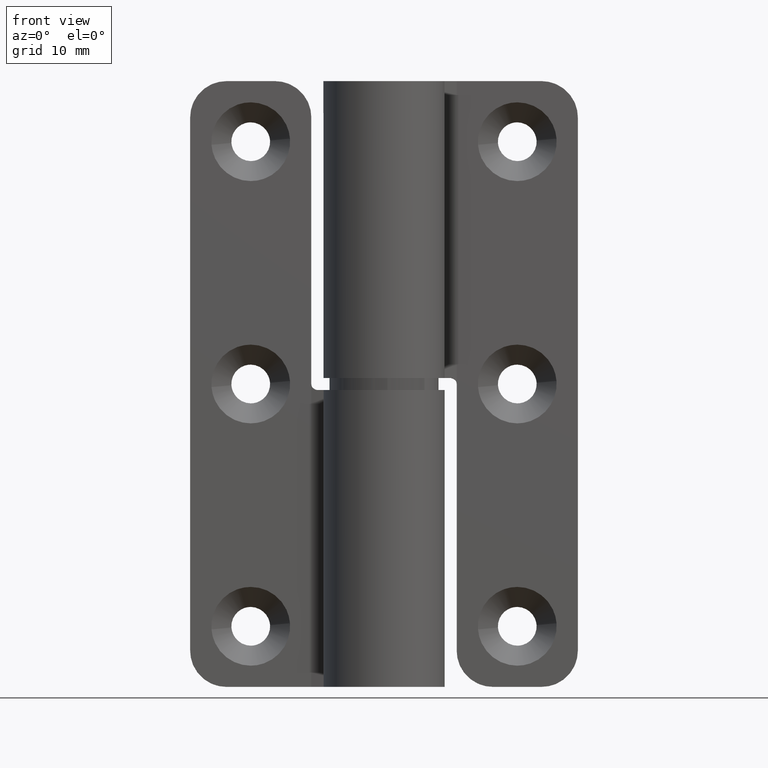
[diagram: clean part render]
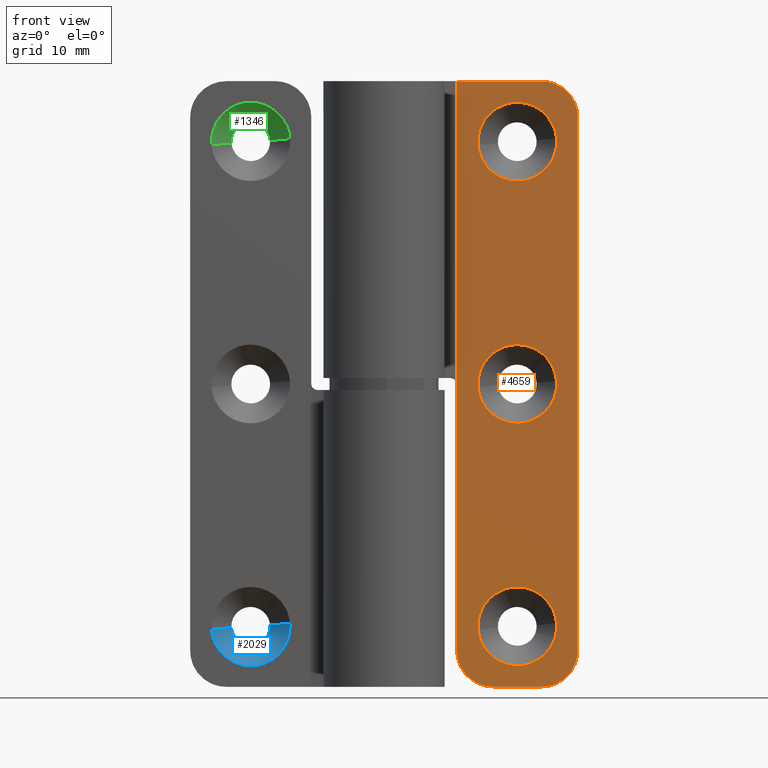
[diagram: same view with three faces highlighted in distinct colors, each labeled with its STEP entity id]
A machine part, front view with three faces highlighted in distinct colors.
Their STEP definitions:

[orange] entity #4659 — the highlighted face is a freeform B-spline surface patch.
#3141=CARTESIAN_POINT('',(14.239981334640120,3.999999999981175,45.254992061261852));
#3142=VERTEX_POINT('',#3141);
#3148=CARTESIAN_POINT('',(10.999999999999860,4.000000000000100,48.250000000000128));
#3149=VERTEX_POINT('',#3148);
#3150=CARTESIAN_POINT('',(10.999999999999860,4.000000000000100,48.250000000000128));
#3151=CARTESIAN_POINT('',(14.004269097763853,3.999999999990636,48.250000000000874));
#3152=CARTESIAN_POINT('',(14.239981334640120,3.999999999981174,45.254992061261852));
#3160=(BOUNDED_CURVE()B_SPLINE_CURVE(2,(#3150,#3151,#3152),.UNSPECIFIED.,.F.,.U.)B_SPLINE_CURVE_WITH_KNOTS((3,3),(0.0,0.236331300625103),.UNSPECIFIED.)CURVE()GEOMETRIC_REPRESENTATION_ITEM()RATIONAL_B_SPLINE_CURVE((1.0,0.723120658614176,0.969723356155821))REPRESENTATION_ITEM(''));
#3161=EDGE_CURVE('',#3149,#3142,#3160,.T.);
#3163=CARTESIAN_POINT('',(7.760018665359605,3.999999999981175,44.745007938738141));
#3164=VERTEX_POINT('',#3163);
#3165=CARTESIAN_POINT('',(7.760018665359605,3.999999999981175,44.745007938738141));
#3166=CARTESIAN_POINT('',(7.749999999981212,3.999999999981518,44.872307152150832));
#3167=CARTESIAN_POINT('',(7.749999999981583,3.999999999981891,44.999999999998572));
#3168=CARTESIAN_POINT('',(7.749999999991016,3.999999999991353,48.249999999999453));
#3169=CARTESIAN_POINT('',(10.999999999999860,4.000000000000100,48.250000000000128));
#3177=(BOUNDED_CURVE()B_SPLINE_CURVE(2,(#3165,#3166,#3167,#3168,#3169),.UNSPECIFIED.,.F.,.U.)B_SPLINE_CURVE_WITH_KNOTS((3,2,3),(0.736331300625102,0.750000000000000,1.0),.UNSPECIFIED.)CURVE()GEOMETRIC_REPRESENTATION_ITEM()RATIONAL_B_SPLINE_CURVE((0.969723356155820,0.983986122572371,1.0,0.707106781186548,1.0))REPRESENTATION_ITEM(''));
#3178=EDGE_CURVE('',#3164,#3149,#3177,.T.);
#3214=CARTESIAN_POINT('',(10.999999999999860,4.000000000000100,41.749999999999872));
#3215=VERTEX_POINT('',#3214);
#3216=CARTESIAN_POINT('',(10.999999999999860,4.000000000000100,41.749999999999872));
#3217=CARTESIAN_POINT('',(7.995730902235884,3.999999999990636,41.749999999999133));
#3218=CARTESIAN_POINT('',(7.760018665359605,3.999999999981176,44.745007938738141));
#3226=(BOUNDED_CURVE()B_SPLINE_CURVE(2,(#3216,#3217,#3218),.UNSPECIFIED.,.F.,.U.)B_SPLINE_CURVE_WITH_KNOTS((3,3),(0.500000000000000,0.736331300625102),.UNSPECIFIED.)CURVE()GEOMETRIC_REPRESENTATION_ITEM()RATIONAL_B_SPLINE_CURVE((1.0,0.723120658614177,0.969723356155819))REPRESENTATION_ITEM(''));
#3227=EDGE_CURVE('',#3215,#3164,#3226,.T.);
#3229=CARTESIAN_POINT('',(14.239981334640120,3.999999999981174,45.254992061261852));
#3230=CARTESIAN_POINT('',(14.250000000018511,3.999999999981519,45.127692847849147));
#3231=CARTESIAN_POINT('',(14.250000000018140,3.999999999981890,45.000000000001428));
#3232=CARTESIAN_POINT('',(14.250000000008708,3.999999999991353,41.750000000000568));
#3233=CARTESIAN_POINT('',(10.999999999999860,4.000000000000100,41.749999999999872));
#3241=(BOUNDED_CURVE()B_SPLINE_CURVE(2,(#3229,#3230,#3231,#3232,#3233),.UNSPECIFIED.,.F.,.U.)B_SPLINE_CURVE_WITH_KNOTS((3,2,3),(0.236331300625103,0.250000000000000,0.500000000000000),.UNSPECIFIED.)CURVE()GEOMETRIC_REPRESENTATION_ITEM()RATIONAL_B_SPLINE_CURVE((0.969723356155821,0.983986122572372,1.0,0.707106781186548,1.0))REPRESENTATION_ITEM(''));
#3242=EDGE_CURVE('',#3142,#3215,#3241,.T.);
#3453=CARTESIAN_POINT('',(14.239981334640120,3.999999999981175,25.254992061261859));
#3454=VERTEX_POINT('',#3453);
#3460=CARTESIAN_POINT('',(10.999999999999860,4.000000000000100,28.250000000000121));
#3461=VERTEX_POINT('',#3460);
#3462=CARTESIAN_POINT('',(10.999999999999860,4.000000000000100,28.250000000000121));
#3463=CARTESIAN_POINT('',(14.004269097763842,3.999999999990637,28.250000000000856));
#3464=CARTESIAN_POINT('',(14.239981334640115,3.999999999981175,25.254992061261856));
#3472=(BOUNDED_CURVE()B_SPLINE_CURVE(2,(#3462,#3463,#3464),.UNSPECIFIED.,.F.,.U.)B_SPLINE_CURVE_WITH_KNOTS((3,3),(0.0,0.236331300625102),.UNSPECIFIED.)CURVE()GEOMETRIC_REPRESENTATION_ITEM()RATIONAL_B_SPLINE_CURVE((1.0,0.723120658614177,0.969723356155820))REPRESENTATION_ITEM(''));
#3473=EDGE_CURVE('',#3461,#3454,#3472,.T.);
#3475=CARTESIAN_POINT('',(7.760018665359606,3.999999999981175,24.745007938738141));
#3476=VERTEX_POINT('',#3475);
#3477=CARTESIAN_POINT('',(7.760018665359606,3.999999999981176,24.745007938738141));
#3478=CARTESIAN_POINT('',(7.749999999981213,3.999999999981519,24.872307152150842));
#3479=CARTESIAN_POINT('',(7.749999999981583,3.999999999981891,24.999999999998579));
#3480=CARTESIAN_POINT('',(7.749999999991016,3.999999999991353,28.249999999999439));
#3481=CARTESIAN_POINT('',(10.999999999999860,4.000000000000100,28.250000000000121));
#3489=(BOUNDED_CURVE()B_SPLINE_CURVE(2,(#3477,#3478,#3479,#3480,#3481),.UNSPECIFIED.,.F.,.U.)B_SPLINE_CURVE_WITH_KNOTS((3,2,3),(0.736331300625102,0.750000000000000,1.0),.UNSPECIFIED.)CURVE()GEOMETRIC_REPRESENTATION_ITEM()RATIONAL_B_SPLINE_CURVE((0.969723356155819,0.983986122572371,1.0,0.707106781186548,1.0))REPRESENTATION_ITEM(''));
#3490=EDGE_CURVE('',#3476,#3461,#3489,.T.);
#3526=CARTESIAN_POINT('',(10.999999999999860,4.000000000000100,21.749999999999879));
#3527=VERTEX_POINT('',#3526);
#3528=CARTESIAN_POINT('',(10.999999999999860,4.000000000000100,21.749999999999879));
#3529=CARTESIAN_POINT('',(7.995730902235885,3.999999999990636,21.749999999999130));
#3530=CARTESIAN_POINT('',(7.760018665359606,3.999999999981176,24.745007938738141));
#3538=(BOUNDED_CURVE()B_SPLINE_CURVE(2,(#3528,#3529,#3530),.UNSPECIFIED.,.F.,.U.)B_SPLINE_CURVE_WITH_KNOTS((3,3),(0.500000000000000,0.736331300625102),.UNSPECIFIED.)CURVE()GEOMETRIC_REPRESENTATION_ITEM()RATIONAL_B_SPLINE_CURVE((1.0,0.723120658614177,0.969723356155819))REPRESENTATION_ITEM(''));
#3539=EDGE_CURVE('',#3527,#3476,#3538,.T.);
#3541=CARTESIAN_POINT('',(14.239981334640119,3.999999999981175,25.254992061261856));
#3542=CARTESIAN_POINT('',(14.250000000018508,3.999999999981520,25.127692847849165));
#3543=CARTESIAN_POINT('',(14.250000000018140,3.999999999981891,25.000000000001432));
#3544=CARTESIAN_POINT('',(14.250000000008708,3.999999999991353,21.750000000000565));
#3545=CARTESIAN_POINT('',(10.999999999999860,4.000000000000100,21.749999999999879));
#3553=(BOUNDED_CURVE()B_SPLINE_CURVE(2,(#3541,#3542,#3543,#3544,#3545),.UNSPECIFIED.,.F.,.U.)B_SPLINE_CURVE_WITH_KNOTS((3,2,3),(0.236331300625102,0.250000000000000,0.500000000000000),.UNSPECIFIED.)CURVE()GEOMETRIC_REPRESENTATION_ITEM()RATIONAL_B_SPLINE_CURVE((0.969723356155820,0.983986122572371,1.0,0.707106781186548,1.0))REPRESENTATION_ITEM(''));
#3554=EDGE_CURVE('',#3454,#3527,#3553,.T.);
#3765=CARTESIAN_POINT('',(14.239981334640120,3.999999999981175,5.254992061261858));
#3766=VERTEX_POINT('',#3765);
#3772=CARTESIAN_POINT('',(10.999999999999860,4.000000000000100,8.250000000000126));
#3773=VERTEX_POINT('',#3772);
#3774=CARTESIAN_POINT('',(10.999999999999860,4.000000000000100,8.250000000000126));
#3775=CARTESIAN_POINT('',(14.004269097763842,3.999999999990637,8.250000000000867));
#3776=CARTESIAN_POINT('',(14.239981334640115,3.999999999981175,5.254992061261858));
#3784=(BOUNDED_CURVE()B_SPLINE_CURVE(2,(#3774,#3775,#3776),.UNSPECIFIED.,.F.,.U.)B_SPLINE_CURVE_WITH_KNOTS((3,3),(0.0,0.236331300625102),.UNSPECIFIED.)CURVE()GEOMETRIC_REPRESENTATION_ITEM()RATIONAL_B_SPLINE_CURVE((1.0,0.723120658614177,0.969723356155820))REPRESENTATION_ITEM(''));
#3785=EDGE_CURVE('',#3773,#3766,#3784,.T.);
#3787=CARTESIAN_POINT('',(7.760018665359606,3.999999999981175,4.745007938738145));
#3788=VERTEX_POINT('',#3787);
#3789=CARTESIAN_POINT('',(7.760018665359606,3.999999999981175,4.745007938738145));
#3790=CARTESIAN_POINT('',(7.749999999981213,3.999999999981520,4.872307152150842));
#3791=CARTESIAN_POINT('',(7.749999999981584,3.999999999981891,4.999999999998569));
#3792=CARTESIAN_POINT('',(7.749999999991016,3.999999999991353,8.249999999999439));
#3793=CARTESIAN_POINT('',(10.999999999999860,4.000000000000100,8.250000000000126));
#3801=(BOUNDED_CURVE()B_SPLINE_CURVE(2,(#3789,#3790,#3791,#3792,#3793),.UNSPECIFIED.,.F.,.U.)B_SPLINE_CURVE_WITH_KNOTS((3,2,3),(0.736331300625102,0.750000000000000,1.0),.UNSPECIFIED.)CURVE()GEOMETRIC_REPRESENTATION_ITEM()RATIONAL_B_SPLINE_CURVE((0.969723356155820,0.983986122572371,1.0,0.707106781186548,1.0))REPRESENTATION_ITEM(''));
#3802=EDGE_CURVE('',#3788,#3773,#3801,.T.);
#3838=CARTESIAN_POINT('',(10.999999999999860,4.000000000000100,1.749999999999875));
#3839=VERTEX_POINT('',#3838);
#3840=CARTESIAN_POINT('',(10.999999999999860,4.000000000000100,1.749999999999875));
#3841=CARTESIAN_POINT('',(7.995730902235878,3.999999999990637,1.749999999999132));
#3842=CARTESIAN_POINT('',(7.760018665359606,3.999999999981175,4.745007938738145));
#3850=(BOUNDED_CURVE()B_SPLINE_CURVE(2,(#3840,#3841,#3842),.UNSPECIFIED.,.F.,.U.)B_SPLINE_CURVE_WITH_KNOTS((3,3),(0.500000000000000,0.736331300625102),.UNSPECIFIED.)CURVE()GEOMETRIC_REPRESENTATION_ITEM()RATIONAL_B_SPLINE_CURVE((1.0,0.723120658614176,0.969723356155820))REPRESENTATION_ITEM(''));
#3851=EDGE_CURVE('',#3839,#3788,#3850,.T.);
#3853=CARTESIAN_POINT('',(14.239981334640115,3.999999999981175,5.254992061261858));
#3854=CARTESIAN_POINT('',(14.250000000018511,3.999999999981518,5.127692847849159));
#3855=CARTESIAN_POINT('',(14.250000000018140,3.999999999981891,5.000000000001430));
#3856=CARTESIAN_POINT('',(14.250000000008708,3.999999999991353,1.750000000000561));
#3857=CARTESIAN_POINT('',(10.999999999999860,4.000000000000100,1.749999999999875));
#3865=(BOUNDED_CURVE()B_SPLINE_CURVE(2,(#3853,#3854,#3855,#3856,#3857),.UNSPECIFIED.,.F.,.U.)B_SPLINE_CURVE_WITH_KNOTS((3,2,3),(0.236331300625102,0.250000000000000,0.500000000000000),.UNSPECIFIED.)CURVE()GEOMETRIC_REPRESENTATION_ITEM()RATIONAL_B_SPLINE_CURVE((0.969723356155820,0.983986122572371,1.0,0.707106781186548,1.0))REPRESENTATION_ITEM(''));
#3866=EDGE_CURVE('',#3766,#3839,#3865,.T.);
#4011=CARTESIAN_POINT('',(6.000000000000440,4.000000000000116,25.0));
#4012=VERTEX_POINT('',#4011);
#4088=CARTESIAN_POINT('',(16.0,4.000000000000116,47.0));
#4089=VERTEX_POINT('',#4088);
#4090=CARTESIAN_POINT('',(12.999999999999799,4.000000000000116,50.0));
#4091=VERTEX_POINT('',#4090);
#4092=CARTESIAN_POINT('',(16.0,4.000000000000116,47.0));
#4093=CARTESIAN_POINT('',(15.999999999999801,4.000000000000116,50.0));
#4094=CARTESIAN_POINT('',(12.999999999999799,4.000000000000116,50.0));
#4102=(BOUNDED_CURVE()B_SPLINE_CURVE(2,(#4092,#4093,#4094),.UNSPECIFIED.,.F.,.U.)CURVE()GEOMETRIC_REPRESENTATION_ITEM()QUASI_UNIFORM_CURVE()RATIONAL_B_SPLINE_CURVE((1.0,0.707106781186548,1.0))REPRESENTATION_ITEM(''));
#4103=EDGE_CURVE('',#4089,#4091,#4102,.T.);
#4149=CARTESIAN_POINT('',(12.999999999999799,4.000000000000116,-8.326673E-014));
#4150=VERTEX_POINT('',#4149);
#4151=CARTESIAN_POINT('',(16.0,4.000000000000116,2.999999999999890));
#4152=VERTEX_POINT('',#4151);
#4153=CARTESIAN_POINT('',(12.999999999999799,4.000000000000116,-1.101549E-013));
#4154=CARTESIAN_POINT('',(15.999999999999801,4.000000000000116,-1.101549E-013));
#4155=CARTESIAN_POINT('',(15.999999999999799,4.000000000000116,2.999999999999890));
#4163=(BOUNDED_CURVE()B_SPLINE_CURVE(2,(#4153,#4154,#4155),.UNSPECIFIED.,.F.,.U.)CURVE()GEOMETRIC_REPRESENTATION_ITEM()QUASI_UNIFORM_CURVE()RATIONAL_B_SPLINE_CURVE((1.0,0.707106781186548,1.0))REPRESENTATION_ITEM(''));
#4164=EDGE_CURVE('',#4150,#4152,#4163,.T.);
#4210=CARTESIAN_POINT('',(6.000000000000440,4.000000000000116,2.999999999999890));
#4211=VERTEX_POINT('',#4210);
#4212=CARTESIAN_POINT('',(8.999999999999890,4.000000000000116,-8.326673E-014));
#4213=VERTEX_POINT('',#4212);
#4214=CARTESIAN_POINT('',(6.000000000000440,4.000000000000116,2.999999999999890));
#4215=CARTESIAN_POINT('',(5.999999999999891,4.000000000000116,-8.500145E-014));
#4216=CARTESIAN_POINT('',(8.999999999999890,4.000000000000116,-8.500145E-014));
#4224=(BOUNDED_CURVE()B_SPLINE_CURVE(2,(#4214,#4215,#4216),.UNSPECIFIED.,.F.,.U.)CURVE()GEOMETRIC_REPRESENTATION_ITEM()QUASI_UNIFORM_CURVE()RATIONAL_B_SPLINE_CURVE((1.0,0.707106781186548,1.0))REPRESENTATION_ITEM(''));
#4225=EDGE_CURVE('',#4211,#4213,#4224,.T.);
#4262=CARTESIAN_POINT('',(6.000000000000440,4.000000000000116,2.999999999999890));
#4263=CARTESIAN_POINT('',(6.000000000000440,4.000000000000116,25.0));
#4264=QUASI_UNIFORM_CURVE('',1,(#4262,#4263),.UNSPECIFIED.,.F.,.U.);
#4265=EDGE_CURVE('',#4211,#4012,#4264,.T.);
#4384=CARTESIAN_POINT('',(8.999999999999890,4.000000000000116,-8.326673E-014));
#4385=CARTESIAN_POINT('',(12.999999999999799,4.000000000000116,-8.326673E-014));
#4386=QUASI_UNIFORM_CURVE('',1,(#4384,#4385),.UNSPECIFIED.,.F.,.U.);
#4387=EDGE_CURVE('',#4213,#4150,#4386,.T.);
#4605=CARTESIAN_POINT('',(16.0,4.000000000000116,2.999999999999890));
#4606=CARTESIAN_POINT('',(16.0,4.000000000000116,47.0));
#4607=QUASI_UNIFORM_CURVE('',1,(#4605,#4606),.UNSPECIFIED.,.F.,.U.);
#4608=EDGE_CURVE('',#4152,#4089,#4607,.T.);
#4616=CARTESIAN_POINT('',(5.500500019382402,4.000000000000116,52.497499903090301));
#4617=CARTESIAN_POINT('',(5.500500019382402,4.000000000000116,-2.497501244194890));
#4618=CARTESIAN_POINT('',(16.499500248838942,4.000000000000116,52.497499903090301));
#4619=CARTESIAN_POINT('',(16.499500248838942,4.000000000000116,-2.497501244194890));
#4620=B_SPLINE_SURFACE_WITH_KNOTS('',1,1,((#4616,#4618),(#4617,#4619)),.UNSPECIFIED.,.F.,.F.,.U.,(2,2),(2,2),(0.0,54.995001147285187),(0.0,10.999000229456540),.UNSPECIFIED.);
#4621=ORIENTED_EDGE('',*,*,#4265,.F.);
#4622=ORIENTED_EDGE('',*,*,#4225,.T.);
#4623=ORIENTED_EDGE('',*,*,#4387,.T.);
#4624=ORIENTED_EDGE('',*,*,#4164,.T.);
#4625=ORIENTED_EDGE('',*,*,#4608,.T.);
#4626=ORIENTED_EDGE('',*,*,#4103,.T.);
#4627=CARTESIAN_POINT('',(6.000000000000440,4.000000000000116,50.0));
#4628=VERTEX_POINT('',#4627);
#4629=CARTESIAN_POINT('',(6.000000000000440,4.000000000000116,50.0));
#4630=CARTESIAN_POINT('',(12.999999999999799,4.000000000000116,50.0));
#4631=QUASI_UNIFORM_CURVE('',1,(#4629,#4630),.UNSPECIFIED.,.F.,.U.);
#4632=EDGE_CURVE('',#4628,#4091,#4631,.T.);
#4633=ORIENTED_EDGE('',*,*,#4632,.F.);
#4634=CARTESIAN_POINT('',(6.000000000000440,4.000000000000116,25.0));
#4635=CARTESIAN_POINT('',(6.000000000000440,4.000000000000116,50.0));
#4636=QUASI_UNIFORM_CURVE('',1,(#4634,#4635),.UNSPECIFIED.,.F.,.U.);
#4637=EDGE_CURVE('',#4012,#4628,#4636,.T.);
#4638=ORIENTED_EDGE('',*,*,#4637,.F.);
#4639=EDGE_LOOP('',(#4621,#4622,#4623,#4624,#4625,#4626,#4633,#4638));
#4640=FACE_OUTER_BOUND('',#4639,.T.);
#4641=ORIENTED_EDGE('',*,*,#3851,.T.);
#4642=ORIENTED_EDGE('',*,*,#3802,.T.);
#4643=ORIENTED_EDGE('',*,*,#3785,.T.);
#4644=ORIENTED_EDGE('',*,*,#3866,.T.);
#4645=EDGE_LOOP('',(#4641,#4642,#4643,#4644));
#4646=FACE_BOUND('',#4645,.T.);
#4647=ORIENTED_EDGE('',*,*,#3539,.T.);
#4648=ORIENTED_EDGE('',*,*,#3490,.T.);
#4649=ORIENTED_EDGE('',*,*,#3473,.T.);
#4650=ORIENTED_EDGE('',*,*,#3554,.T.);
#4651=EDGE_LOOP('',(#4647,#4648,#4649,#4650));
#4652=FACE_BOUND('',#4651,.T.);
#4653=ORIENTED_EDGE('',*,*,#3227,.T.);
#4654=ORIENTED_EDGE('',*,*,#3178,.T.);
#4655=ORIENTED_EDGE('',*,*,#3161,.T.);
#4656=ORIENTED_EDGE('',*,*,#3242,.T.);
#4657=EDGE_LOOP('',(#4653,#4654,#4655,#4656));
#4658=FACE_BOUND('',#4657,.T.);
#4659=ADVANCED_FACE('',(#4640,#4646,#4652,#4658),#4620,.T.);

[blue] entity #2029 — the highlighted face is a freeform B-spline surface patch.
#1770=CARTESIAN_POINT('',(-12.597015699373570,5.649999999910135,4.902322694046831));
#1771=VERTEX_POINT('',#1770);
#1777=CARTESIAN_POINT('',(-11.0,5.650000000000180,3.400000000000000));
#1778=VERTEX_POINT('',#1777);
#1779=CARTESIAN_POINT('',(-11.0,5.650000000000180,3.400000000000000));
#1780=CARTESIAN_POINT('',(-12.479998768739829,5.649999999955158,3.413928623950515));
#1781=CARTESIAN_POINT('',(-12.597015699373575,5.649999999910135,4.902322694046831));
#1789=(BOUNDED_CURVE()B_SPLINE_CURVE(2,(#1779,#1780,#1781),.UNSPECIFIED.,.F.,.U.)B_SPLINE_CURVE_WITH_KNOTS((3,3),(0.500000000000000,0.736331300558734),.UNSPECIFIED.)CURVE()GEOMETRIC_REPRESENTATION_ITEM()RATIONAL_B_SPLINE_CURVE((1.0,0.723120658691931,0.969723356017315))REPRESENTATION_ITEM(''));
#1790=EDGE_CURVE('',#1778,#1771,#1789,.T.);
#1792=CARTESIAN_POINT('',(-9.402984322527203,5.649999999910133,5.097677664029021));
#1793=VERTEX_POINT('',#1792);
#1794=CARTESIAN_POINT('',(-9.402984322527203,5.649999999910133,5.097677664029021));
#1795=CARTESIAN_POINT('',(-9.399999999955815,5.649999999911437,5.048884421667542));
#1796=CARTESIAN_POINT('',(-9.399999999956510,5.649999999912824,5.000000000004189));
#1797=CARTESIAN_POINT('',(-9.399999999979299,5.649999999958217,3.400000000002001));
#1798=CARTESIAN_POINT('',(-11.0,5.650000000000180,3.400000000000000));
#1806=(BOUNDED_CURVE()B_SPLINE_CURVE(2,(#1794,#1795,#1796,#1797,#1798),.UNSPECIFIED.,.F.,.U.)B_SPLINE_CURVE_WITH_KNOTS((3,2,3),(0.239332962158890,0.250000000000000,0.500000000000000),.UNSPECIFIED.)CURVE()GEOMETRIC_REPRESENTATION_ITEM()RATIONAL_B_SPLINE_CURVE((0.976072041495150,0.987502787806050,1.0,0.707106781186548,1.0))REPRESENTATION_ITEM(''));
#1807=EDGE_CURVE('',#1793,#1778,#1806,.T.);
#1923=CARTESIAN_POINT('',(-7.760018665359775,3.999999999981175,5.254992061261855));
#1924=VERTEX_POINT('',#1923);
#1925=CARTESIAN_POINT('',(-9.402984322527203,5.649999999910133,5.097677664029021));
#1926=CARTESIAN_POINT('',(-7.760018665359775,3.999999999981175,5.254992061261855));
#1927=QUASI_UNIFORM_CURVE('',1,(#1925,#1926),.UNSPECIFIED.,.F.,.U.);
#1928=EDGE_CURVE('',#1793,#1924,#1927,.T.);
#1945=CARTESIAN_POINT('',(-14.239981334640230,3.999999999981176,4.745007938738146));
#1946=VERTEX_POINT('',#1945);
#1962=CARTESIAN_POINT('',(-12.597015699373570,5.649999999910135,4.902322694046831));
#1963=CARTESIAN_POINT('',(-14.239981334640230,3.999999999981176,4.745007938738146));
#1964=QUASI_UNIFORM_CURVE('',1,(#1962,#1963),.UNSPECIFIED.,.F.,.U.);
#1965=EDGE_CURVE('',#1771,#1946,#1964,.T.);
#1971=CARTESIAN_POINT('',(-12.557769516635522,5.691250000000181,4.926298323332175));
#1972=CARTESIAN_POINT('',(-12.555869671773443,5.691250000000182,4.902158505547669));
#1973=CARTESIAN_POINT('',(-12.431646778490741,5.691250000000183,3.323756990577698));
#1974=CARTESIAN_POINT('',(-10.877701884534220,5.691250000000183,3.446055106043478));
#1975=CARTESIAN_POINT('',(-9.323756990577698,5.691250000000183,3.568353221509258));
#1976=CARTESIAN_POINT('',(-9.446922664080720,5.691250000000180,5.133321485507548));
#1977=CARTESIAN_POINT('',(-9.447785138681693,5.691250000000183,5.144280264367237));
#1978=CARTESIAN_POINT('',(-14.290210342544214,3.957718750000096,4.844332543264124));
#1979=CARTESIAN_POINT('',(-14.286197624906803,3.957718750000096,4.793346131414661));
#1980=CARTESIAN_POINT('',(-14.023822835892920,3.957718750000097,1.459558344593584));
#1981=CARTESIAN_POINT('',(-10.741690590243250,3.957718750000097,1.717867754350333));
#1982=CARTESIAN_POINT('',(-7.459558344593584,3.957718750000097,1.976177164107081));
#1983=CARTESIAN_POINT('',(-7.719700148935294,3.957718750000095,5.281592190510771));
#1984=CARTESIAN_POINT('',(-7.721521806646526,3.957718750000096,5.304738546348876));
#1992=(BOUNDED_SURFACE()B_SPLINE_SURFACE(2,1,((#1971,#1978),(#1972,#1979),(#1973,#1980),(#1974,#1981),(#1975,#1982),(#1976,#1983),(#1977,#1984)),.UNSPECIFIED.,.F.,.F.,.U.)B_SPLINE_SURFACE_WITH_KNOTS((3,1,2,1,3),(2,2),(0.0,0.122207408300092,5.577037587886840,11.031867767473591,11.086752681912939),(0.0,2.452182741784194),.UNSPECIFIED.)GEOMETRIC_REPRESENTATION_ITEM()RATIONAL_B_SPLINE_SURFACE(((1.013123679381922,1.013123679381922),(1.006561839690961,1.006561839690961),(0.707106781186548,0.707106781186548),(1.0,1.0),(0.707106781186548,0.707106781186548),(1.002947006364122,1.002947006364122),(1.005894012728243,1.005894012728243)))REPRESENTATION_ITEM('')SURFACE());
#1993=ORIENTED_EDGE('',*,*,#1807,.T.);
#1994=ORIENTED_EDGE('',*,*,#1790,.T.);
#1995=ORIENTED_EDGE('',*,*,#1965,.T.);
#1996=CARTESIAN_POINT('',(-11.0,4.000000000000100,1.749999999999905));
#1997=VERTEX_POINT('',#1996);
#1998=CARTESIAN_POINT('',(-11.0,4.000000000000100,1.749999999999905));
#1999=CARTESIAN_POINT('',(-14.004269097763952,3.999999999990637,1.749999999999163));
#2000=CARTESIAN_POINT('',(-14.239981334640229,3.999999999981176,4.745007938738146));
#2008=(BOUNDED_CURVE()B_SPLINE_CURVE(2,(#1998,#1999,#2000),.UNSPECIFIED.,.F.,.U.)B_SPLINE_CURVE_WITH_KNOTS((3,3),(0.500000000000000,0.736331300625102),.UNSPECIFIED.)CURVE()GEOMETRIC_REPRESENTATION_ITEM()RATIONAL_B_SPLINE_CURVE((1.0,0.723120658614177,0.969723356155820))REPRESENTATION_ITEM(''));
#2009=EDGE_CURVE('',#1997,#1946,#2008,.T.);
#2010=ORIENTED_EDGE('',*,*,#2009,.F.);
#2011=CARTESIAN_POINT('',(-7.760018665359775,3.999999999981176,5.254992061261855));
#2012=CARTESIAN_POINT('',(-7.749999999981382,3.999999999981519,5.127692847849157));
#2013=CARTESIAN_POINT('',(-7.749999999981752,3.999999999981891,5.000000000001428));
#2014=CARTESIAN_POINT('',(-7.749999999991186,3.999999999991353,1.750000000000591));
#2015=CARTESIAN_POINT('',(-11.0,4.000000000000100,1.749999999999905));
#2023=(BOUNDED_CURVE()B_SPLINE_CURVE(2,(#2011,#2012,#2013,#2014,#2015),.UNSPECIFIED.,.F.,.U.)B_SPLINE_CURVE_WITH_KNOTS((3,2,3),(0.236331300625102,0.250000000000000,0.500000000000000),.UNSPECIFIED.)CURVE()GEOMETRIC_REPRESENTATION_ITEM()RATIONAL_B_SPLINE_CURVE((0.969723356155820,0.983986122572371,1.0,0.707106781186548,1.0))REPRESENTATION_ITEM(''));
#2024=EDGE_CURVE('',#1924,#1997,#2023,.T.);
#2025=ORIENTED_EDGE('',*,*,#2024,.F.);
#2026=ORIENTED_EDGE('',*,*,#1928,.F.);
#2027=EDGE_LOOP('',(#1993,#1994,#1995,#2010,#2025,#2026));
#2028=FACE_OUTER_BOUND('',#2027,.T.);
#2029=ADVANCED_FACE('',(#2028),#1992,.F.);

[green] entity #1346 — the highlighted face is a freeform B-spline surface patch.
#1146=CARTESIAN_POINT('',(-12.597015699373580,5.649999999910135,44.902322694046831));
#1147=VERTEX_POINT('',#1146);
#1168=CARTESIAN_POINT('',(-9.402984322527203,5.649999999910133,45.097677664029021));
#1169=VERTEX_POINT('',#1168);
#1227=CARTESIAN_POINT('',(-11.0,5.650000000000180,46.599999999999987));
#1228=VERTEX_POINT('',#1227);
#1229=CARTESIAN_POINT('',(-11.0,5.650000000000180,46.599999999999987));
#1230=CARTESIAN_POINT('',(-9.520001242210560,5.649999999955157,46.586071555087408));
#1231=CARTESIAN_POINT('',(-9.402984322527203,5.649999999910133,45.097677664029021));
#1239=(BOUNDED_CURVE()B_SPLINE_CURVE(2,(#1229,#1230,#1231),.UNSPECIFIED.,.F.,.U.)B_SPLINE_CURVE_WITH_KNOTS((3,3),(0.0,0.236331300558734),.UNSPECIFIED.)CURVE()GEOMETRIC_REPRESENTATION_ITEM()RATIONAL_B_SPLINE_CURVE((1.0,0.723120658691932,0.969723356017314))REPRESENTATION_ITEM(''));
#1240=EDGE_CURVE('',#1228,#1169,#1239,.T.);
#1242=CARTESIAN_POINT('',(-12.597015699373571,5.649999999910135,44.902322694046831));
#1243=CARTESIAN_POINT('',(-12.600000000044144,5.649999999911441,44.951115757872401));
#1244=CARTESIAN_POINT('',(-12.600000000043449,5.649999999912829,44.999999999995829));
#1245=CARTESIAN_POINT('',(-12.600000000020676,5.649999999958220,46.599999999998005));
#1246=CARTESIAN_POINT('',(-11.0,5.650000000000180,46.599999999999987));
#1254=(BOUNDED_CURVE()B_SPLINE_CURVE(2,(#1242,#1243,#1244,#1245,#1246),.UNSPECIFIED.,.F.,.U.)B_SPLINE_CURVE_WITH_KNOTS((3,2,3),(0.739333000846575,0.750000000000000,1.0),.UNSPECIFIED.)CURVE()GEOMETRIC_REPRESENTATION_ITEM()RATIONAL_B_SPLINE_CURVE((0.976072124410236,0.987502833131492,1.0,0.707106781186548,1.0))REPRESENTATION_ITEM(''));
#1255=EDGE_CURVE('',#1147,#1228,#1254,.T.);
#1276=CARTESIAN_POINT('',(-9.442230510215444,5.691250000000183,45.073702017841654));
#1277=CARTESIAN_POINT('',(-9.444130341827655,5.691250000000187,45.097841667270650));
#1278=CARTESIAN_POINT('',(-9.568353221509257,5.691250000000183,46.676243009422301));
#1279=CARTESIAN_POINT('',(-11.122298115465780,5.691250000000183,46.553944893956519));
#1280=CARTESIAN_POINT('',(-12.676243009422302,5.691250000000183,46.431646778490730));
#1281=CARTESIAN_POINT('',(-12.553077335987426,5.691250000000183,44.866678515358451));
#1282=CARTESIAN_POINT('',(-12.552214861453821,5.691250000000183,44.855719737354633));
#1283=CARTESIAN_POINT('',(-7.709789714168476,3.957718750000096,45.155668177339038));
#1284=CARTESIAN_POINT('',(-7.713802403820464,3.957718750000098,45.206654233599892));
#1285=CARTESIAN_POINT('',(-7.976177164107082,3.957718750000097,48.540441655406411));
#1286=CARTESIAN_POINT('',(-11.258309409756750,3.957718750000097,48.282132245649670));
#1287=CARTESIAN_POINT('',(-14.540441655406420,3.957718750000097,48.023822835892922));
#1288=CARTESIAN_POINT('',(-14.280299851208657,3.957718750000097,44.718407811318329));
#1289=CARTESIAN_POINT('',(-14.278478193639698,3.957718750000096,44.695261457287927));
#1297=(BOUNDED_SURFACE()B_SPLINE_SURFACE(2,1,((#1276,#1283),(#1277,#1284),(#1278,#1285),(#1279,#1286),(#1280,#1287),(#1281,#1288),(#1282,#1289)),.UNSPECIFIED.,.F.,.F.,.U.)B_SPLINE_SURFACE_WITH_KNOTS((3,1,2,1,3),(2,2),(0.0,0.122206539077074,5.577036718663833,11.031866898250589,11.086751808365459),(0.0,2.452182733369898),.UNSPECIFIED.)GEOMETRIC_REPRESENTATION_ITEM()RATIONAL_B_SPLINE_SURFACE(((1.013123586037301,1.013123586037301),(1.006561793018650,1.006561793018650),(0.707106781186548,0.707106781186548),(1.0,1.0),(0.707106781186548,0.707106781186548),(1.002947006131921,1.002947006131921),(1.005894012263842,1.005894012263842)))REPRESENTATION_ITEM('')SURFACE());
#1298=ORIENTED_EDGE('',*,*,#1240,.T.);
#1299=CARTESIAN_POINT('',(-7.760018665359774,3.999999999981175,45.254992061261859));
#1300=VERTEX_POINT('',#1299);
#1301=CARTESIAN_POINT('',(-9.402984322527203,5.649999999910133,45.097677664029021));
#1302=CARTESIAN_POINT('',(-7.760018665359774,3.999999999981175,45.254992061261859));
#1303=QUASI_UNIFORM_CURVE('',1,(#1301,#1302),.UNSPECIFIED.,.F.,.U.);
#1304=EDGE_CURVE('',#1169,#1300,#1303,.T.);
#1305=ORIENTED_EDGE('',*,*,#1304,.T.);
#1306=CARTESIAN_POINT('',(-11.0,4.000000000000100,48.250000000000092));
#1307=VERTEX_POINT('',#1306);
#1308=CARTESIAN_POINT('',(-11.0,4.000000000000100,48.250000000000092));
#1309=CARTESIAN_POINT('',(-7.995730902236055,3.999999999990637,48.250000000000831));
#1310=CARTESIAN_POINT('',(-7.760018665359774,3.999999999981174,45.254992061261866));
#1318=(BOUNDED_CURVE()B_SPLINE_CURVE(2,(#1308,#1309,#1310),.UNSPECIFIED.,.F.,.U.)B_SPLINE_CURVE_WITH_KNOTS((3,3),(0.0,0.236331300625102),.UNSPECIFIED.)CURVE()GEOMETRIC_REPRESENTATION_ITEM()RATIONAL_B_SPLINE_CURVE((1.0,0.723120658614177,0.969723356155819))REPRESENTATION_ITEM(''));
#1319=EDGE_CURVE('',#1307,#1300,#1318,.T.);
#1320=ORIENTED_EDGE('',*,*,#1319,.F.);
#1321=CARTESIAN_POINT('',(-14.239981334640230,3.999999999981175,44.745007938738148));
#1322=VERTEX_POINT('',#1321);
#1323=CARTESIAN_POINT('',(-14.239981334640225,3.999999999981175,44.745007938738155));
#1324=CARTESIAN_POINT('',(-14.250000000018622,3.999999999981519,44.872307152150846));
#1325=CARTESIAN_POINT('',(-14.250000000018250,3.999999999981891,44.999999999998572));
#1326=CARTESIAN_POINT('',(-14.250000000008805,3.999999999991353,48.249999999999403));
#1327=CARTESIAN_POINT('',(-11.0,4.000000000000100,48.250000000000092));
#1335=(BOUNDED_CURVE()B_SPLINE_CURVE(2,(#1323,#1324,#1325,#1326,#1327),.UNSPECIFIED.,.F.,.U.)B_SPLINE_CURVE_WITH_KNOTS((3,2,3),(0.736331300625102,0.750000000000000,1.0),.UNSPECIFIED.)CURVE()GEOMETRIC_REPRESENTATION_ITEM()RATIONAL_B_SPLINE_CURVE((0.969723356155820,0.983986122572371,1.0,0.707106781186548,1.0))REPRESENTATION_ITEM(''));
#1336=EDGE_CURVE('',#1322,#1307,#1335,.T.);
#1337=ORIENTED_EDGE('',*,*,#1336,.F.);
#1338=CARTESIAN_POINT('',(-12.597015699373580,5.649999999910135,44.902322694046831));
#1339=CARTESIAN_POINT('',(-14.239981334640230,3.999999999981175,44.745007938738148));
#1340=QUASI_UNIFORM_CURVE('',1,(#1338,#1339),.UNSPECIFIED.,.F.,.U.);
#1341=EDGE_CURVE('',#1147,#1322,#1340,.T.);
#1342=ORIENTED_EDGE('',*,*,#1341,.F.);
#1343=ORIENTED_EDGE('',*,*,#1255,.T.);
#1344=EDGE_LOOP('',(#1298,#1305,#1320,#1337,#1342,#1343));
#1345=FACE_OUTER_BOUND('',#1344,.T.);
#1346=ADVANCED_FACE('',(#1345),#1297,.F.);